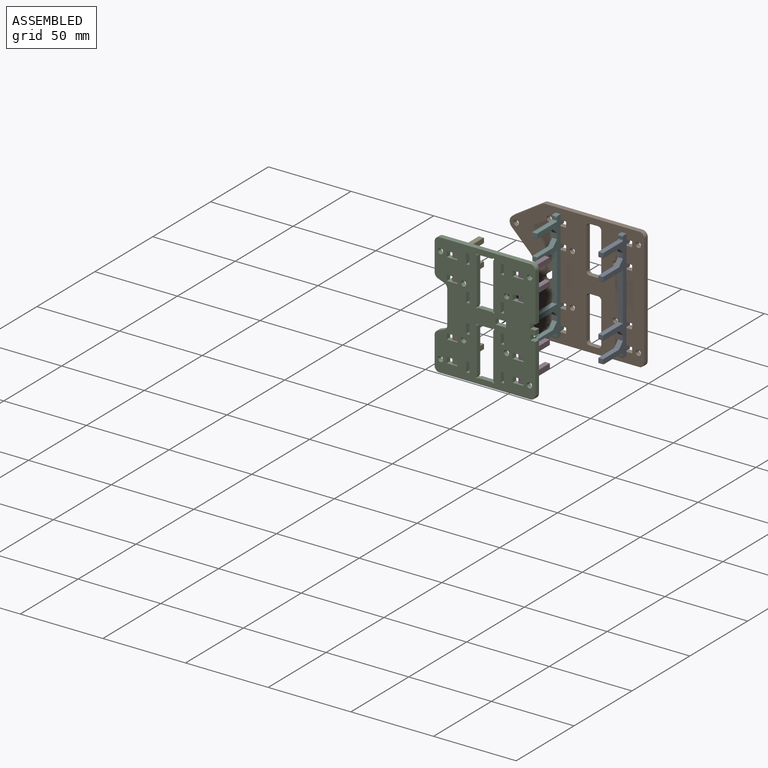
[diagram: assembled view]
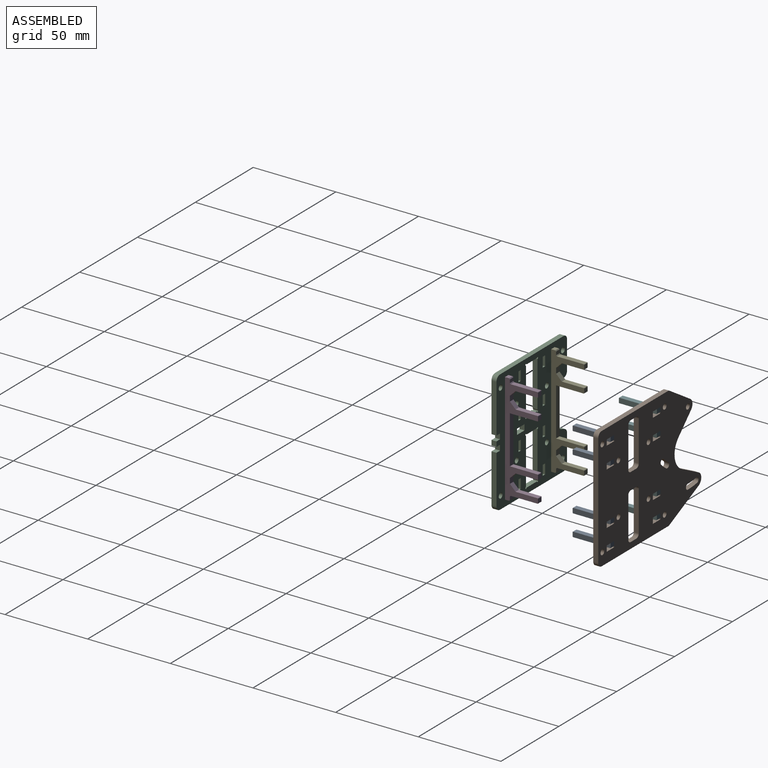
[diagram: assembled view, second angle]
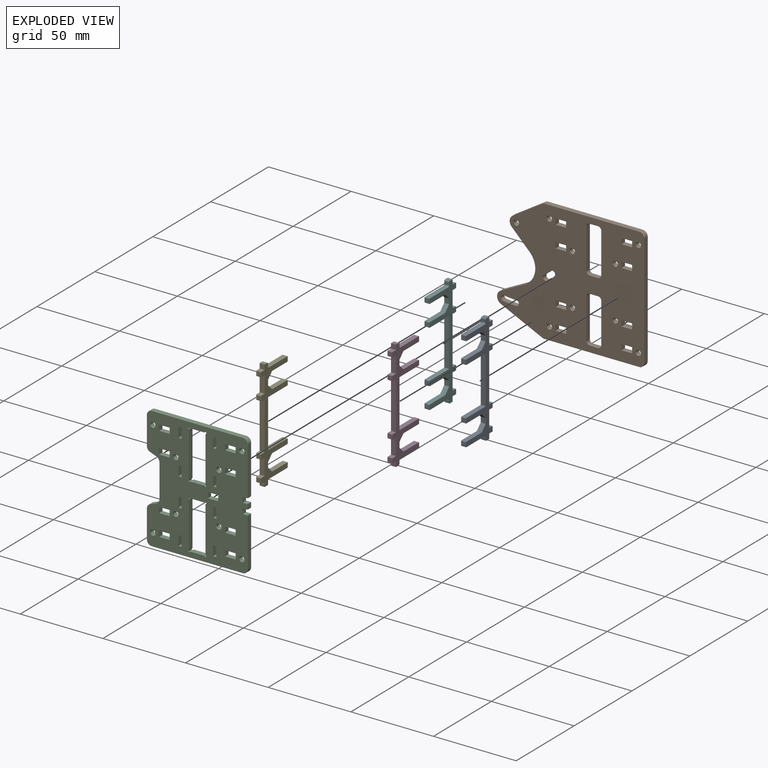
[diagram: exploded view]
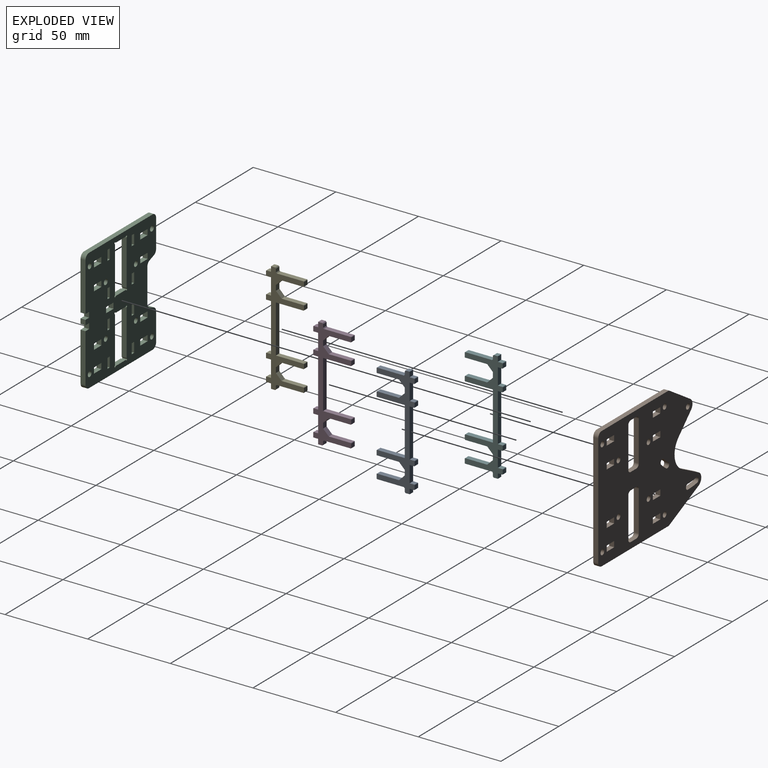
[diagram: exploded view, second angle]
ASSEMBLY  parts=6 mates=4
PART A: 62 faces, bbox 23x3x67 mm
  f0: plane 29x3mm, normal (1,0,0), area 87mm2, adj f1,f59,f60,f61
  f1: plane 16.8x3mm, normal (0,0,-1), area 50.4mm2, adj f0,f2,f60,f61
  f2: plane 3x0.2mm, normal (0.71,0,-0.71), area 0.8mm2, adj f1,f3,f60,f61
  f3: plane 3x2.6mm, normal (1,0,0), area 7.8mm2, adj f2,f4,f60,f61
  f4: plane 3x0.2mm, normal (0.71,0,0.71), area 0.8mm2, adj f3,f5,f60,f61
  f5: plane 13.37x3mm, normal (0,0,1), area 40.1mm2, adj f4,f6,f60,f61
  f6: plane 3.43x3.43mm, normal (0.71,0,0.71), area 14.5mm2, adj f5,f7,f60,f61
  f7: plane 3.14x3mm, normal (1,0,0), area 9.4mm2, adj f6,f8,f60,f61
  f8: plane 3.43x3.43mm, normal (0.71,0,-0.71), area 14.5mm2, adj f7,f9,f60,f61
  f9: plane 13.37x3mm, normal (0,0,-1), area 40.1mm2, adj f8,f10,f60,f61
  f10: plane 3x0.2mm, normal (0.71,0,-0.71), area 0.8mm2, adj f9,f11,f60,f61
  f11: plane 3x2.6mm, normal (1,0,0), area 7.8mm2, adj f10,f12,f60,f61
  f12: plane 3x0.2mm, normal (0.71,0,0.71), area 0.8mm2, adj f11,f13,f60,f61
  f13: plane 16.3x3mm, normal (0,0,1), area 48.9mm2, adj f12,f14,f60,f61
  f14: plane 3x0.5mm, normal (0.71,0,0.71), area 2.1mm2, adj f13,f15,f60,f61
  f15: plane 3x2mm, normal (1,0,0), area 6mm2, adj f14,f16,f60,f61
  f16: plane 3x0.5mm, normal (0.71,0,0.71), area 2.1mm2, adj f15,f17,f60,f61
  f17: plane 3x2.5mm, normal (0,0,1), area 7.5mm2, adj f16,f18,f60,f61
  f18: plane 3x3mm, normal (-1,0,0), area 9mm2, adj f17,f19,f60,f61
  f19: plane 3x2.8mm, normal (0,0,1), area 8.4mm2, adj f18,f20,f60,f61
  f20: plane 3x0.2mm, normal (-0.71,0,0.71), area 0.8mm2, adj f19,f21,f60,f61
  f21: plane 3x2.6mm, normal (-1,0,0), area 7.8mm2, adj f20,f22,f60,f61
  f22: plane 3x0.2mm, normal (-0.71,0,-0.71), area 0.8mm2, adj f21,f23,f60,f61
  f23: plane 3x2.8mm, normal (0,0,-1), area 8.4mm2, adj f22,f24,f60,f61
  f24: plane 10x3mm, normal (-1,0,0), area 30mm2, adj f23,f25,f60,f61
  f25: plane 3x2.8mm, normal (0,0,1), area 8.4mm2, adj f24,f26,f60,f61
  f26: plane 3x0.2mm, normal (-0.71,0,0.71), area 0.8mm2, adj f25,f27,f60,f61
  f27: plane 3x2.6mm, normal (-1,0,0), area 7.8mm2, adj f26,f28,f60,f61
  f28: plane 3x0.2mm, normal (-0.71,0,-0.71), area 0.8mm2, adj f27,f29,f60,f61
  f29: plane 3x2.8mm, normal (0,0,-1), area 8.4mm2, adj f28,f30,f60,f61
  f30: plane 29x3mm, normal (-1,0,0), area 87mm2, adj f29,f31,f60,f61
  f31: plane 3x2.8mm, normal (0,0,1), area 8.4mm2, adj f30,f32,f60,f61
  f32: plane 3x0.2mm, normal (-0.71,0,0.71), area 0.8mm2, adj f31,f33,f60,f61
  f33: plane 3x2.6mm, normal (-1,0,0), area 7.8mm2, adj f32,f34,f60,f61
  f34: plane 3x0.2mm, normal (-0.71,0,-0.71), area 0.8mm2, adj f33,f35,f60,f61
  f35: plane 3x2.8mm, normal (0,0,-1), area 8.4mm2, adj f34,f36,f60,f61
  f36: plane 10x3mm, normal (-1,0,0), area 30mm2, adj f35,f37,f60,f61
  f37: plane 3x2.8mm, normal (0,0,1), area 8.4mm2, adj f36,f38,f60,f61
  f38: plane 3x0.2mm, normal (-0.71,0,0.71), area 0.8mm2, adj f37,f39,f60,f61
  f39: plane 3x2.6mm, normal (-1,0,0), area 7.8mm2, adj f38,f40,f60,f61
  f40: plane 3x0.2mm, normal (-0.71,0,-0.71), area 0.8mm2, adj f39,f41,f60,f61
  f41: plane 3x2.8mm, normal (0,0,-1), area 8.4mm2, adj f40,f42,f60,f61
  f42: plane 3x3mm, normal (-1,0,0), area 9mm2, adj f41,f43,f60,f61
  f43: plane 3x2.5mm, normal (0,0,-1), area 7.5mm2, adj f42,f44,f60,f61
  f44: plane 3x0.5mm, normal (0.71,0,-0.71), area 2.1mm2, adj f43,f45,f60,f61
  f45: plane 3x2mm, normal (1,0,0), area 6mm2, adj f44,f46,f60,f61
  f46: plane 3x0.5mm, normal (0.71,0,-0.71), area 2.1mm2, adj f45,f47,f60,f61
  f47: plane 16.3x3mm, normal (0,0,-1), area 48.9mm2, adj f46,f48,f60,f61
  f48: plane 3x0.2mm, normal (0.71,0,-0.71), area 0.8mm2, adj f47,f49,f60,f61
  f49: plane 3x2.6mm, normal (1,0,0), area 7.8mm2, adj f48,f50,f60,f61
  f50: plane 3x0.2mm, normal (0.71,0,0.71), area 0.8mm2, adj f49,f51,f60,f61
  f51: plane 13.37x3mm, normal (0,0,1), area 40.1mm2, adj f50,f52,f60,f61
  f52: plane 3.43x3.43mm, normal (0.71,0,0.71), area 14.5mm2, adj f51,f53,f60,f61
  f53: plane 3.14x3mm, normal (1,0,0), area 9.4mm2, adj f52,f54,f60,f61
  f54: plane 3.43x3.43mm, normal (0.71,0,-0.71), area 14.5mm2, adj f53,f55,f60,f61
  f55: plane 13.37x3mm, normal (0,0,-1), area 40.1mm2, adj f54,f56,f60,f61
  f56: plane 3x0.2mm, normal (0.71,0,-0.71), area 0.8mm2, adj f55,f57,f60,f61
  f57: plane 3x2.6mm, normal (1,0,0), area 7.8mm2, adj f56,f58,f60,f61
  f58: plane 3x0.2mm, normal (0.71,0,0.71), area 0.8mm2, adj f57,f59,f60,f61
  f59: plane 16.8x3mm, normal (0,0,1), area 50.4mm2, adj f0,f58,f60,f61
  f60: plane 67x23mm, normal (0,-1,0), area 464.2mm2, adj f0,f1,f2,f3,f4,f5,f6,f7
  f61: plane 67x23mm, normal (0,1,0), area 464.2mm2, adj f0,f1,f2,f3,f4,f5,f6,f7
PART B: 81 faces, bbox 89x3x74 mm
  f0: cylinder r=1.6mm len=3.18mm, axis (0,1,0), area 15.1mm2, adj f1,f78,f79,f80
  f1: cylinder r=42.24mm len=7.34mm, axis (0,1,0), area 22.1mm2, adj f0,f2,f79,f80
  f2: cylinder r=1.6mm len=3.2mm, axis (0,1,0), area 15.1mm2, adj f1,f78,f79,f80
  f3: plane 6.4x3mm, normal (0,0,-1), area 19.2mm2, adj f4,f57,f79,f80
  f4: plane 3.4x3mm, normal (-1,0,0), area 10.2mm2, adj f3,f5,f79,f80
  f5: plane 6.4x3mm, normal (0,0,1), area 19.2mm2, adj f4,f57,f79,f80
  f6: plane 6.4x3mm, normal (0,0,-1), area 19.2mm2, adj f7,f58,f79,f80
  f7: plane 3.4x3mm, normal (-1,0,0), area 10.2mm2, adj f6,f8,f79,f80
  f8: plane 6.4x3mm, normal (0,0,1), area 19.2mm2, adj f7,f58,f79,f80
  f9: plane 6.4x3mm, normal (0,0,1), area 19.2mm2, adj f10,f59,f79,f80
  f10: plane 3.4x3mm, normal (1,0,0), area 10.2mm2, adj f9,f11,f79,f80
  f11: plane 6.4x3mm, normal (0,0,-1), area 19.2mm2, adj f10,f59,f79,f80
  f12: plane 6.4x3mm, normal (0,0,1), area 19.2mm2, adj f13,f60,f79,f80
  f13: plane 3.4x3mm, normal (1,0,0), area 10.2mm2, adj f12,f14,f79,f80
  f14: plane 6.4x3mm, normal (0,0,-1), area 19.2mm2, adj f13,f60,f79,f80
  f15: plane 14.63x7.44mm, normal (-0.45,0,0.89), area 49.2mm2, adj f16,f61,f79,f80
  f16: cylinder r=4mm len=7.18mm, axis (0,1,0), area 26.8mm2, adj f15,f17,f79,f80
  f17: plane 25.13x11.84mm, normal (-0.43,0,-0.9), area 83.3mm2, adj f16,f18,f79,f80
  f18: cylinder r=3mm len=3mm, axis (0,1,0), area 4mm2, adj f17,f19,f79,f80
  f19: plane 57.33x3mm, normal (0,0,-1), area 172mm2, adj f18,f20,f79,f80
  f20: cylinder r=3mm len=3mm, axis (0,1,0), area 14.1mm2, adj f19,f21,f79,f80
  f21: plane 68x3mm, normal (1,0,0), area 204mm2, adj f20,f22,f79,f80
  f22: cylinder r=3mm len=3mm, axis (0,1,0), area 14.1mm2, adj f21,f23,f79,f80
  f23: plane 57.13x3mm, normal (0,0,1), area 171.4mm2, adj f22,f24,f79,f80
  f24: cylinder r=3mm len=3mm, axis (0,1,0), area 5.1mm2, adj f23,f25,f79,f80
  f25: plane 17.82x11.23mm, normal (-0.53,0,0.85), area 63.2mm2, adj f24,f26,f79,f80
  f26: cylinder r=4mm len=6.21mm, axis (0,1,0), area 21.5mm2, adj f25,f27,f79,f80
  f27: plane 10.96x10.96mm, normal (-0.71,0,-0.71), area 46.5mm2, adj f26,f61,f79,f80
  f28: plane 24.3x3mm, normal (1,0,0), area 72.9mm2, adj f29,f71,f79,f80
  f29: cylinder r=2mm len=3mm, axis (0,1,0), area 9.4mm2, adj f28,f30,f79,f80
  f30: plane 5x3mm, normal (0,0,-1), area 15mm2, adj f29,f31,f79,f80
  f31: cylinder r=2mm len=3mm, axis (0,1,0), area 9.4mm2, adj f30,f32,f79,f80
  f32: plane 24.3x3mm, normal (-1,0,0), area 72.9mm2, adj f31,f33,f79,f80
  f33: cylinder r=2mm len=3mm, axis (0,1,0), area 9.4mm2, adj f32,f34,f79,f80
  f34: plane 5x3mm, normal (0,0,1), area 15mm2, adj f33,f71,f79,f80
  f35: plane 5x3mm, normal (0,0,1), area 15mm2, adj f36,f72,f79,f80
  f36: cylinder r=2mm len=3mm, axis (0,1,0), area 9.4mm2, adj f35,f37,f79,f80
  f37: plane 24.3x3mm, normal (1,0,0), area 72.9mm2, adj f36,f38,f79,f80
  f38: cylinder r=2mm len=3mm, axis (0,1,0), area 9.4mm2, adj f37,f39,f79,f80
  f39: plane 5x3mm, normal (0,0,-1), area 15mm2, adj f38,f40,f79,f80
  f40: cylinder r=2mm len=3mm, axis (0,1,0), area 9.4mm2, adj f39,f41,f79,f80
  f41: plane 24.3x3mm, normal (-1,0,0), area 72.9mm2, adj f40,f72,f79,f80
  f42: plane 3.4x3mm, normal (-1,0,0), area 10.2mm2, adj f43,f73,f79,f80
  f43: plane 6.4x3mm, normal (0,0,1), area 19.2mm2, adj f42,f44,f79,f80
  f44: plane 3.4x3mm, normal (1,0,0), area 10.2mm2, adj f43,f73,f79,f80
  f45: plane 3.4x3mm, normal (-1,0,0), area 10.2mm2, adj f46,f74,f79,f80
  f46: plane 6.4x3mm, normal (0,0,1), area 19.2mm2, adj f45,f47,f79,f80
  f47: plane 3.4x3mm, normal (1,0,0), area 10.2mm2, adj f46,f74,f79,f80
  f48: plane 3.4x3mm, normal (1,0,0), area 10.2mm2, adj f49,f75,f79,f80
  f49: plane 6.4x3mm, normal (0,0,-1), area 19.2mm2, adj f48,f50,f79,f80
  f50: plane 3.4x3mm, normal (-1,0,0), area 10.2mm2, adj f49,f75,f79,f80
  f51: plane 3.4x3mm, normal (1,0,0), area 10.2mm2, adj f52,f76,f79,f80
  f52: plane 6.4x3mm, normal (0,0,-1), area 19.2mm2, adj f51,f53,f79,f80
  f53: plane 3.4x3mm, normal (-1,0,0), area 10.2mm2, adj f52,f76,f79,f80
  f54: cylinder r=1.6mm len=3mm, axis (0,1,0), area 15.1mm2, adj f55,f77,f79,f80
  f55: cylinder r=32.6mm len=4.35mm, axis (0,1,0), area 17.1mm2, adj f54,f56,f79,f80
  f56: extruded ~3x2.91mm, area 15.1mm2, adj f55,f77,f79,f80
  f57: plane 3.4x3mm, normal (1,0,0), area 10.2mm2, adj f3,f5,f79,f80
  f58: plane 3.4x3mm, normal (1,0,0), area 10.2mm2, adj f6,f8,f79,f80
  f59: plane 3.4x3mm, normal (-1,0,0), area 10.2mm2, adj f9,f11,f79,f80
  f60: plane 3.4x3mm, normal (-1,0,0), area 10.2mm2, adj f12,f14,f79,f80
  f61: cylinder r=11.5mm len=18.38mm, axis (0,1,0), area 65.1mm2, adj f15,f27,f79,f80
  f62: cylinder r=1.6mm len=3.2mm, axis (0,1,0), area 30.2mm2, adj f79,f80
  f63: cylinder r=1.6mm len=3.2mm, axis (0,1,0), area 30.2mm2, adj f79,f80
  f64: cylinder r=1.6mm len=3.2mm, axis (0,1,0), area 30.2mm2, adj f79,f80
  f65: cylinder r=1.6mm len=3.2mm, axis (0,1,0), area 30.2mm2, adj f79,f80
  f66: cylinder r=1.6mm len=3.21mm, axis (0,1,0), area 30.2mm2, adj f79,f80
  f67: cylinder r=1.6mm len=3.2mm, axis (0,1,0), area 30.2mm2, adj f79,f80
  f68: cylinder r=1.6mm len=3.2mm, axis (0,1,0), area 30.2mm2, adj f79,f80
  f69: cylinder r=1.6mm len=3.2mm, axis (0,1,0), area 30.2mm2, adj f79,f80
  f70: cylinder r=1.6mm len=3.2mm, axis (0,1,0), area 30.2mm2, adj f79,f80
  f71: cylinder r=2mm len=3mm, axis (0,1,0), area 9.4mm2, adj f28,f34,f79,f80
  f72: cylinder r=2mm len=3mm, axis (0,1,0), area 9.4mm2, adj f35,f41,f79,f80
  f73: plane 6.4x3mm, normal (0,0,-1), area 19.2mm2, adj f42,f44,f79,f80
  f74: plane 6.4x3mm, normal (0,0,-1), area 19.2mm2, adj f45,f47,f79,f80
  f75: plane 6.4x3mm, normal (0,0,1), area 19.2mm2, adj f48,f50,f79,f80
  f76: plane 6.4x3mm, normal (0,0,1), area 19.2mm2, adj f51,f53,f79,f80
  f77: cylinder r=29.4mm len=3.93mm, axis (0,1,0), area 15.4mm2, adj f54,f56,f79,f80
  f78: cylinder r=45.44mm len=7.89mm, axis (0,1,0), area 23.8mm2, adj f0,f2,f79,f80
  f79: plane 89.03x74mm, normal (0,-1,0), area 4694.6mm2, adj f0,f1,f2,f3,f4,f5,f6,f7
  f80: plane 89.03x74mm, normal (0,1,0), area 4694.6mm2, adj f0,f1,f2,f3,f4,f5,f6,f7
PART C: 134 faces, bbox 61x3x74 mm
  f0: plane 6.4x3mm, normal (0,0,-1), area 19.2mm2, adj f1,f131,f132,f133
  f1: plane 3.4x3mm, normal (-1,0,0), area 10.2mm2, adj f0,f2,f132,f133
  f2: plane 6.4x3mm, normal (0,0,1), area 19.2mm2, adj f1,f131,f132,f133
  f3: plane 6.4x3mm, normal (0,0,-1), area 19.2mm2, adj f4,f104,f132,f133
  f4: plane 3.4x3mm, normal (-1,0,0), area 10.2mm2, adj f3,f5,f132,f133
  f5: plane 6.4x3mm, normal (0,0,1), area 19.2mm2, adj f4,f104,f132,f133
  f6: plane 6.4x3mm, normal (0,0,1), area 19.2mm2, adj f7,f105,f132,f133
  f7: plane 3.4x3mm, normal (1,0,0), area 10.2mm2, adj f6,f8,f132,f133
  f8: plane 6.4x3mm, normal (0,0,-1), area 19.2mm2, adj f7,f105,f132,f133
  f9: plane 6.4x3mm, normal (0,0,1), area 19.2mm2, adj f10,f106,f132,f133
  f10: plane 3.4x3mm, normal (1,0,0), area 10.2mm2, adj f9,f11,f132,f133
  f11: plane 6.4x3mm, normal (0,0,-1), area 19.2mm2, adj f10,f106,f132,f133
  f12: plane 3x2mm, normal (0,0,1), area 6mm2, adj f13,f107,f132,f133
  f13: plane 6x3mm, normal (1,0,0), area 18mm2, adj f12,f14,f132,f133
  f14: plane 3x2mm, normal (0,0,-1), area 6mm2, adj f13,f107,f132,f133
  f15: plane 3x2mm, normal (0,0,1), area 6mm2, adj f16,f108,f132,f133
  f16: plane 6x3mm, normal (1,0,0), area 18mm2, adj f15,f17,f132,f133
  f17: plane 3x2mm, normal (0,0,-1), area 6mm2, adj f16,f108,f132,f133
  f18: plane 3x2mm, normal (0,0,1), area 6mm2, adj f19,f109,f132,f133
  f19: plane 6x3mm, normal (1,0,0), area 18mm2, adj f18,f20,f132,f133
  f20: plane 3x2mm, normal (0,0,-1), area 6mm2, adj f19,f109,f132,f133
  f21: plane 3x2mm, normal (0,0,1), area 6mm2, adj f22,f110,f132,f133
  f22: plane 6x3mm, normal (1,0,0), area 18mm2, adj f21,f23,f132,f133
  f23: plane 3x2mm, normal (0,0,-1), area 6mm2, adj f22,f110,f132,f133
  f24: cylinder r=0.5mm len=3mm, axis (0,1,0), area 1.6mm2, adj f25,f111,f132,f133
  f25: plane 8.27x3mm, normal (0,0,-1), area 24.8mm2, adj f24,f26,f132,f133
  f26: cylinder r=0.5mm len=3mm, axis (0,1,0), area 1.6mm2, adj f25,f27,f132,f133
  f27: cylinder r=0.5mm len=3mm, axis (0,1,0), area 5.5mm2, adj f26,f28,f132,f133
  f28: cylinder r=0.5mm len=3mm, axis (0,1,0), area 1.6mm2, adj f27,f29,f132,f133
  f29: plane 27.37x3mm, normal (-1,0,0), area 82.1mm2, adj f28,f30,f132,f133
  f30: cylinder r=0.5mm len=3mm, axis (0,1,0), area 1.6mm2, adj f29,f31,f132,f133
  f31: cylinder r=0.5mm len=3mm, axis (0,1,0), area 5.5mm2, adj f30,f32,f132,f133
  f32: cylinder r=0.5mm len=3mm, axis (0,1,0), area 1.6mm2, adj f31,f33,f132,f133
  f33: plane 8.27x3mm, normal (0,0,1), area 24.8mm2, adj f32,f34,f132,f133
  f34: cylinder r=0.5mm len=3mm, axis (0,1,0), area 1.6mm2, adj f33,f35,f132,f133
  f35: cylinder r=0.5mm len=3mm, axis (0,1,0), area 5.5mm2, adj f34,f36,f132,f133
  f36: cylinder r=0.5mm len=3mm, axis (0,1,0), area 1.6mm2, adj f35,f37,f132,f133
  f37: plane 27.37x3mm, normal (1,0,0), area 82.1mm2, adj f36,f38,f132,f133
  f38: cylinder r=0.5mm len=3mm, axis (0,1,0), area 1.6mm2, adj f37,f111,f132,f133
  f39: plane 3.1x3mm, normal (0,0,-1), area 9.3mm2, adj f40,f112,f132,f133
  f40: plane 29.3x3mm, normal (1,0,0), area 87.9mm2, adj f39,f41,f132,f133
  f41: cylinder r=3mm len=3mm, axis (0,1,0), area 14.1mm2, adj f40,f42,f132,f133
  f42: plane 55x3mm, normal (0,0,1), area 165mm2, adj f41,f43,f132,f133
  f43: cylinder r=3mm len=3mm, axis (0,1,0), area 14.1mm2, adj f42,f44,f132,f133
  f44: plane 16.92x3mm, normal (-1,0,0), area 50.8mm2, adj f43,f45,f132,f133
  f45: cylinder r=3mm len=3mm, axis (0,1,0), area 10.9mm2, adj f44,f46,f132,f133
  f46: plane 3.71x3mm, normal (-0.35,0,-0.94), area 11.9mm2, adj f45,f47,f132,f133
  f47: cylinder r=3mm len=3mm, axis (0,1,0), area 10.9mm2, adj f46,f48,f132,f133
  f48: plane 20.14x3mm, normal (-1,0,0), area 60.4mm2, adj f47,f49,f132,f133
  f49: cylinder r=3mm len=3mm, axis (0,1,0), area 10.9mm2, adj f48,f50,f132,f133
  f50: plane 3.71x3mm, normal (-0.35,0,0.94), area 11.9mm2, adj f49,f51,f132,f133
  f51: cylinder r=3mm len=3mm, axis (0,1,0), area 10.9mm2, adj f50,f52,f132,f133
  f52: plane 16.92x3mm, normal (-1,0,0), area 50.8mm2, adj f51,f53,f132,f133
  f53: cylinder r=3mm len=3mm, axis (0,1,0), area 14.1mm2, adj f52,f54,f132,f133
  f54: plane 55x3mm, normal (0,0,-1), area 165mm2, adj f53,f55,f132,f133
  f55: cylinder r=3mm len=3mm, axis (0,1,0), area 14.1mm2, adj f54,f56,f132,f133
  f56: plane 29.3x3mm, normal (1,0,0), area 87.9mm2, adj f55,f57,f132,f133
  f57: plane 3.1x3mm, normal (0,0,1), area 9.3mm2, adj f56,f58,f132,f133
  f58: plane 3.2x3mm, normal (1,0,0), area 9.6mm2, adj f57,f59,f132,f133
  f59: plane 3.1x3mm, normal (0,0,-1), area 9.3mm2, adj f58,f60,f132,f133
  f60: plane 3x3mm, normal (1,0,0), area 9mm2, adj f59,f61,f132,f133
  f61: plane 3.1x3mm, normal (0,0,1), area 9.3mm2, adj f60,f112,f132,f133
  f62: plane 27.37x3mm, normal (-1,0,0), area 82.1mm2, adj f63,f121,f132,f133
  f63: cylinder r=0.5mm len=3mm, axis (0,1,0), area 1.6mm2, adj f62,f64,f132,f133
  f64: cylinder r=0.5mm len=3mm, axis (0,1,0), area 5.5mm2, adj f63,f65,f132,f133
  f65: cylinder r=0.5mm len=3mm, axis (0,1,0), area 1.6mm2, adj f64,f66,f132,f133
  f66: plane 8.27x3mm, normal (0,0,1), area 24.8mm2, adj f65,f67,f132,f133
  f67: cylinder r=0.5mm len=3mm, axis (0,1,0), area 1.6mm2, adj f66,f68,f132,f133
  f68: cylinder r=0.5mm len=3mm, axis (0,1,0), area 5.5mm2, adj f67,f69,f132,f133
  f69: cylinder r=0.5mm len=3mm, axis (0,1,0), area 1.6mm2, adj f68,f70,f132,f133
  f70: plane 27.37x3mm, normal (1,0,0), area 82.1mm2, adj f69,f71,f132,f133
  f71: cylinder r=0.5mm len=3mm, axis (0,1,0), area 1.6mm2, adj f70,f72,f132,f133
  f72: cylinder r=0.5mm len=3mm, axis (0,1,0), area 5.5mm2, adj f71,f73,f132,f133
  f73: cylinder r=0.5mm len=3mm, axis (0,1,0), area 1.6mm2, adj f72,f74,f132,f133
  f74: plane 8.27x3mm, normal (0,0,-1), area 24.8mm2, adj f73,f75,f132,f133
  f75: cylinder r=0.5mm len=3mm, axis (0,1,0), area 1.6mm2, adj f74,f76,f132,f133
  f76: cylinder r=0.5mm len=3mm, axis (0,1,0), area 5.5mm2, adj f75,f121,f132,f133
  f77: plane 6x3mm, normal (1,0,0), area 18mm2, adj f78,f122,f132,f133
  f78: plane 3x2mm, normal (0,0,-1), area 6mm2, adj f77,f79,f132,f133
  f79: plane 6x3mm, normal (-1,0,0), area 18mm2, adj f78,f122,f132,f133
  f80: plane 6x3mm, normal (1,0,0), area 18mm2, adj f81,f123,f132,f133
  f81: plane 3x2mm, normal (0,0,-1), area 6mm2, adj f80,f82,f132,f133
  f82: plane 6x3mm, normal (-1,0,0), area 18mm2, adj f81,f123,f132,f133
  f83: plane 3.4x3mm, normal (-1,0,0), area 10.2mm2, adj f84,f124,f132,f133
  f84: plane 6.4x3mm, normal (0,0,1), area 19.2mm2, adj f83,f85,f132,f133
  f85: plane 3.4x3mm, normal (1,0,0), area 10.2mm2, adj f84,f124,f132,f133
  f86: plane 6x3mm, normal (1,0,0), area 18mm2, adj f87,f125,f132,f133
  f87: plane 3x2mm, normal (0,0,-1), area 6mm2, adj f86,f88,f132,f133
  f88: plane 6x3mm, normal (-1,0,0), area 18mm2, adj f87,f125,f132,f133
  f89: plane 6x3mm, normal (1,0,0), area 18mm2, adj f90,f126,f132,f133
  f90: plane 3x2mm, normal (0,0,-1), area 6mm2, adj f89,f91,f132,f133
  f91: plane 6x3mm, normal (-1,0,0), area 18mm2, adj f90,f126,f132,f133
  f92: plane 3.4x3mm, normal (-1,0,0), area 10.2mm2, adj f93,f127,f132,f133
  f93: plane 6.4x3mm, normal (0,0,1), area 19.2mm2, adj f92,f94,f132,f133
  f94: plane 3.4x3mm, normal (1,0,0), area 10.2mm2, adj f93,f127,f132,f133
  f95: plane 3.4x3mm, normal (-1,0,0), area 10.2mm2, adj f96,f128,f132,f133
  f96: plane 6.4x3mm, normal (0,0,1), area 19.2mm2, adj f95,f97,f132,f133
  f97: plane 3.4x3mm, normal (1,0,0), area 10.2mm2, adj f96,f128,f132,f133
  f98: plane 3.4x3mm, normal (1,0,0), area 10.2mm2, adj f99,f129,f132,f133
  f99: plane 6.4x3mm, normal (0,0,-1), area 19.2mm2, adj f98,f100,f132,f133
  f100: plane 3.4x3mm, normal (-1,0,0), area 10.2mm2, adj f99,f129,f132,f133
  f101: plane 3.4x3mm, normal (1,0,0), area 10.2mm2, adj f102,f130,f132,f133
  f102: plane 6.4x3mm, normal (0,0,-1), area 19.2mm2, adj f101,f103,f132,f133
  f103: plane 3.4x3mm, normal (-1,0,0), area 10.2mm2, adj f102,f130,f132,f133
  f104: plane 3.4x3mm, normal (1,0,0), area 10.2mm2, adj f3,f5,f132,f133
  f105: plane 3.4x3mm, normal (-1,0,0), area 10.2mm2, adj f6,f8,f132,f133
  f106: plane 3.4x3mm, normal (-1,0,0), area 10.2mm2, adj f9,f11,f132,f133
  f107: plane 6x3mm, normal (-1,0,0), area 18mm2, adj f12,f14,f132,f133
  f108: plane 6x3mm, normal (-1,0,0), area 18mm2, adj f15,f17,f132,f133
  f109: plane 6x3mm, normal (-1,0,0), area 18mm2, adj f18,f20,f132,f133
  f110: plane 6x3mm, normal (-1,0,0), area 18mm2, adj f21,f23,f132,f133
  f111: cylinder r=0.5mm len=3mm, axis (0,1,0), area 5.5mm2, adj f24,f38,f132,f133
  f112: plane 3.2x3mm, normal (1,0,0), area 9.6mm2, adj f39,f61,f132,f133
  f113: cylinder r=1.6mm len=3.2mm, axis (0,1,0), area 30.2mm2, adj f132,f133
  f114: cylinder r=1.6mm len=3.2mm, axis (0,1,0), area 30.2mm2, adj f132,f133
  f115: cylinder r=1.6mm len=3.2mm, axis (0,1,0), area 30.2mm2, adj f132,f133
  f116: cylinder r=1.6mm len=3.2mm, axis (0,1,0), area 30.2mm2, adj f132,f133
  f117: cylinder r=1.6mm len=3.2mm, axis (0,1,0), area 30.2mm2, adj f132,f133
  f118: cylinder r=1.6mm len=3.2mm, axis (0,1,0), area 30.2mm2, adj f132,f133
  f119: cylinder r=1.6mm len=3.2mm, axis (0,1,0), area 30.2mm2, adj f132,f133
  f120: cylinder r=1.6mm len=3.2mm, axis (0,1,0), area 30.2mm2, adj f132,f133
  f121: cylinder r=0.5mm len=3mm, axis (0,1,0), area 1.6mm2, adj f62,f76,f132,f133
  f122: plane 3x2mm, normal (0,0,1), area 6mm2, adj f77,f79,f132,f133
  f123: plane 3x2mm, normal (0,0,1), area 6mm2, adj f80,f82,f132,f133
  f124: plane 6.4x3mm, normal (0,0,-1), area 19.2mm2, adj f83,f85,f132,f133
  f125: plane 3x2mm, normal (0,0,1), area 6mm2, adj f86,f88,f132,f133
  f126: plane 3x2mm, normal (0,0,1), area 6mm2, adj f89,f91,f132,f133
  f127: plane 6.4x3mm, normal (0,0,-1), area 19.2mm2, adj f92,f94,f132,f133
  f128: plane 6.4x3mm, normal (0,0,-1), area 19.2mm2, adj f95,f97,f132,f133
  f129: plane 6.4x3mm, normal (0,0,1), area 19.2mm2, adj f98,f100,f132,f133
  f130: plane 6.4x3mm, normal (0,0,1), area 19.2mm2, adj f101,f103,f132,f133
  f131: plane 3.4x3mm, normal (1,0,0), area 10.2mm2, adj f0,f2,f132,f133
  f132: plane 74x61mm, normal (0,-1,0), area 3336.9mm2, adj f0,f1,f2,f3,f4,f5,f6,f7
  f133: plane 74x61mm, normal (0,1,0), area 3336.9mm2, adj f0,f1,f2,f3,f4,f5,f6,f7
PART D: same geometry as A
PART E: same geometry as A
PART F: same geometry as A
PLACE A rot(axis=(0,0,-1),90deg) t=(30.07,0.91,19.97)mm
PLACE B t=(-3.7,12.41,19.57)mm
PLACE C t=(-4.91,-59.82,25.35)mm
PLACE D rot(axis=(0,0,1),90deg) t=(15.24,-51.32,25.75)mm
PLACE E rot(axis=(0,0,1),90deg) t=(-24.66,-51.32,25.75)mm
PLACE F rot(axis=(0,0,-1),90deg) t=(-9.83,0.91,19.97)mm
MATE fastened A.f21 <-> B.f80  axis (0,1,0) through (27.07,12.41,50.27)mm
MATE fastened E.f21 <-> C.f132  axis (0,-1,0) through (-21.66,-62.82,56.05)mm
MATE fastened F.f21 <-> B.f80  axis (0,1,0) through (-12.83,12.41,50.27)mm
MATE fastened D.f21 <-> C.f132  axis (0,-1,0) through (18.24,-62.82,56.05)mm
